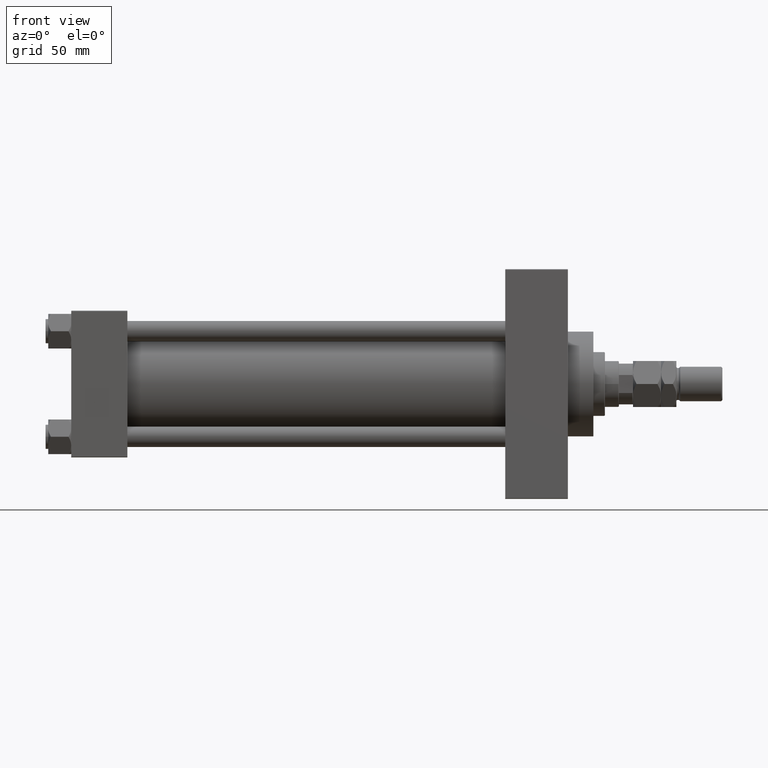
[diagram: clean part render]
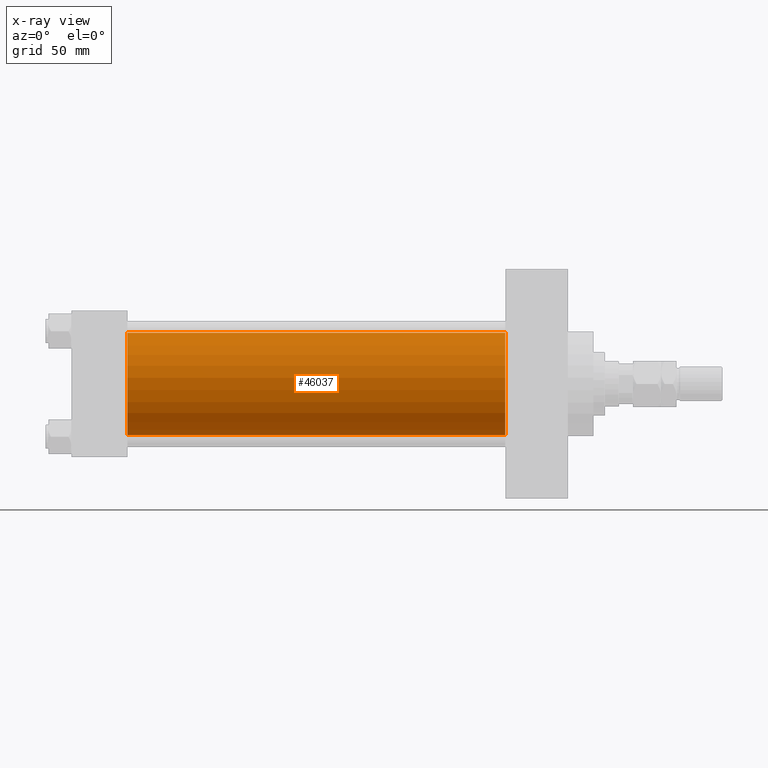
[diagram: x-ray — body ghosted, one internal face saturated and labeled with its STEP entity id]
A machine part, front view, then the same camera in x-ray: the body is ghosted and one INTERNAL B-rep face — a face not visible from any outside direction — is saturated and labeled: STEP entity #46037.
In plain terms, the highlighted cylindrical surface (partial cylindrical patch) has radius 40 mm, axis along (-1, -0, -0).
Its self-contained STEP definition (entity closure, byte-faithful):
#249 = EDGE_CURVE ( 'NONE', #21992, #43562, #23058, .T. ) ;
#2642 = DIRECTION ( 'NONE',  ( -1.000000000000000000, -0.000000000000000000, -0.000000000000000000 ) ) ;
#3060 = DIRECTION ( 'NONE',  ( -1.000000000000000000, -0.000000000000000000, -0.000000000000000000 ) ) ;
#5785 = AXIS2_PLACEMENT_3D ( 'NONE', #42170, #2642, #38542 ) ;
#7295 = AXIS2_PLACEMENT_3D ( 'NONE', #49079, #33227, #25159 ) ;
#8001 = CARTESIAN_POINT ( 'NONE',  ( 339.9999999999999432, 2.296501982624201990E-15, -40.00000000000000000 ) ) ;
#9466 = ORIENTED_EDGE ( 'NONE', *, *, #42861, .T. ) ;
#10357 = DIRECTION ( 'NONE',  ( -1.000000000000000000, -0.000000000000000000, -0.000000000000000000 ) ) ;
#11141 = CARTESIAN_POINT ( 'NONE',  ( 339.9999999999999432, -2.602085213965210642E-15, 40.00000000000000000 ) ) ;
#11355 = CARTESIAN_POINT ( 'NONE',  ( 44.00000000000000000, -2.602085213965210642E-15, 40.00000000000000000 ) ) ;
#11743 = ORIENTED_EDGE ( 'NONE', *, *, #14836, .T. ) ;
#12176 = CYLINDRICAL_SURFACE ( 'NONE', #5785, 40.00000000000000000 ) ;
#12703 = CARTESIAN_POINT ( 'NONE',  ( 339.9999999999999432, -2.602085213965210642E-15, 40.00000000000000000 ) ) ;
#14836 = EDGE_CURVE ( 'NONE', #37034, #44522, #31133, .T. ) ;
#16391 = EDGE_CURVE ( 'NONE', #37034, #21992, #46506, .T. ) ;
#19381 = CARTESIAN_POINT ( 'NONE',  ( 44.00000000000000000, 2.296501982624201990E-15, -40.00000000000000000 ) ) ;
#19982 = FACE_OUTER_BOUND ( 'NONE', #43708, .T. ) ;
#21992 = VERTEX_POINT ( 'NONE', #11355 ) ;
#23058 = CIRCLE ( 'NONE', #7295, 40.00000000000000000 ) ;
#25159 = DIRECTION ( 'NONE',  ( 0.000000000000000000, 0.000000000000000000, -1.000000000000000000 ) ) ;
#26957 = AXIS2_PLACEMENT_3D ( 'NONE', #29764, #29252, #45877 ) ;
#29252 = DIRECTION ( 'NONE',  ( 1.000000000000000000, 0.000000000000000000, 0.000000000000000000 ) ) ;
#29764 = CARTESIAN_POINT ( 'NONE',  ( 339.9999999999999432, -2.602085213965210642E-15, 0.000000000000000000 ) ) ;
#31133 = CIRCLE ( 'NONE', #26957, 40.00000000000000000 ) ;
#33227 = DIRECTION ( 'NONE',  ( 1.000000000000000000, 0.000000000000000000, 0.000000000000000000 ) ) ;
#34463 = VECTOR ( 'NONE', #10357, 1000.000000000000000 ) ;
#34894 = ORIENTED_EDGE ( 'NONE', *, *, #16391, .F. ) ;
#37034 = VERTEX_POINT ( 'NONE', #12703 ) ;
#38073 = ORIENTED_EDGE ( 'NONE', *, *, #249, .F. ) ;
#38542 = DIRECTION ( 'NONE',  ( 0.000000000000000000, 0.000000000000000000, 1.000000000000000000 ) ) ;
#39050 = VECTOR ( 'NONE', #3060, 1000.000000000000000 ) ;
#42170 = CARTESIAN_POINT ( 'NONE',  ( 339.9999999999999432, -2.602085213965210642E-15, 0.000000000000000000 ) ) ;
#42861 = EDGE_CURVE ( 'NONE', #44522, #43562, #47011, .T. ) ;
#43562 = VERTEX_POINT ( 'NONE', #19381 ) ;
#43708 = EDGE_LOOP ( 'NONE', ( #11743, #9466, #38073, #34894 ) ) ;
#44522 = VERTEX_POINT ( 'NONE', #8001 ) ;
#45877 = DIRECTION ( 'NONE',  ( 0.000000000000000000, 0.000000000000000000, -1.000000000000000000 ) ) ;
#46037 = ADVANCED_FACE ( 'NONE', ( #19982 ), #12176, .F. ) ;
#46506 = LINE ( 'NONE', #11141, #34463 ) ;
#46761 = CARTESIAN_POINT ( 'NONE',  ( 339.9999999999999432, 2.296501982624201990E-15, -40.00000000000000000 ) ) ;
#47011 = LINE ( 'NONE', #46761, #39050 ) ;
#49079 = CARTESIAN_POINT ( 'NONE',  ( 44.00000000000000000, -2.602085213965210642E-15, 0.000000000000000000 ) ) ;